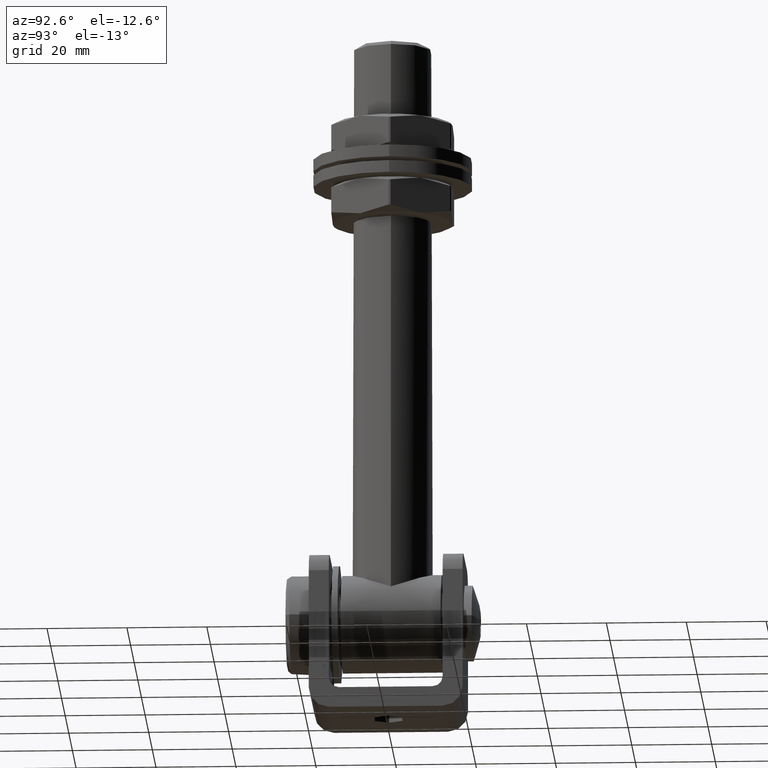
[diagram: clean part render]
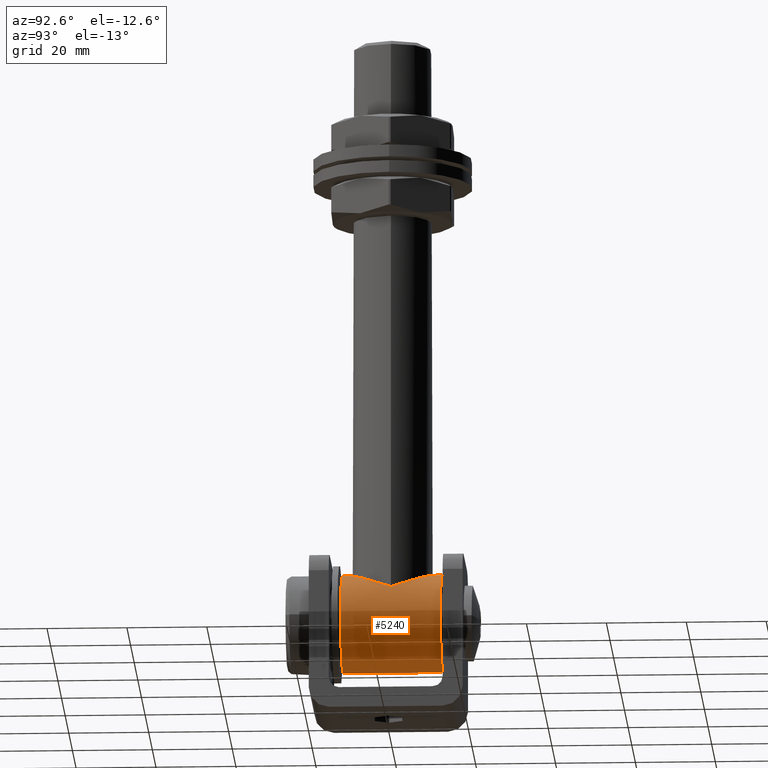
[diagram: same view with one face highlighted and labeled with its STEP entity id]
A machine part, auxiliary view. The second image highlights one B-rep face of the part: STEP entity #5240.
In plain terms, the highlighted cylindrical surface (partial cylindrical patch) has radius 12.5 mm, axis along (-0, -1, -0).
Its self-contained STEP definition (entity closure, byte-faithful):
#30 = CARTESIAN_POINT ( 'NONE',  ( 1.374250701650398421, -9.911119071784762369, 24.92899123197080868 ) ) ;
#87 = CARTESIAN_POINT ( 'NONE',  ( 10.00000000000000000, -0.3502560565025665817, 20.00000000000000355 ) ) ;
#205 = CARTESIAN_POINT ( 'NONE',  ( 0.000000000000000000, 12.50000000000000000, 12.50000000000000000 ) ) ;
#284 = CARTESIAN_POINT ( 'NONE',  ( 7.566306126111996377, -6.567939238527029211, 22.46407964469007368 ) ) ;
#318 = VERTEX_POINT ( 'NONE', #2850 ) ;
#779 = CARTESIAN_POINT ( 'NONE',  ( 4.598010520176416982, 8.905125854004371178, 24.14143615479020966 ) ) ;
#1000 = EDGE_CURVE ( 'NONE', #17165, #3987, #16954, .T. ) ;
#1509 = CARTESIAN_POINT ( 'NONE',  ( 9.324431114186022995, -3.627096256533199448, 20.82699121110412577 ) ) ;
#1841 = VERTEX_POINT ( 'NONE', #8165 ) ;
#1927 = EDGE_LOOP ( 'NONE', ( #5847, #18643, #3542, #3886, #15153, #3539, #8368 ) ) ;
#2191 = CARTESIAN_POINT ( 'NONE',  ( 3.682483057596400489, 9.303228489903005993, 24.44960261485472230 ) ) ;
#2850 = CARTESIAN_POINT ( 'NONE',  ( 0.000000000000000000, -12.50000000000000000, 0.000000000000000000 ) ) ;
#3048 = CARTESIAN_POINT ( 'NONE',  ( 9.075513655662634349, -4.211400567891692148, 21.09760723218307277 ) ) ;
#3121 = CARTESIAN_POINT ( 'NONE',  ( 0.000000000000000000, -12.50000000000000000, 12.50000000000000000 ) ) ;
#3176 = DIRECTION ( 'NONE',  ( -0.000000000000000000, -1.000000000000000000, -0.000000000000000000 ) ) ;
#3246 = CYLINDRICAL_SURFACE ( 'NONE', #15290, 12.50000000000000000 ) ;
#3481 = CARTESIAN_POINT ( 'NONE',  ( 6.211755165912530074, 7.862653695549001398, 23.36331154612080852 ) ) ;
#3539 = ORIENTED_EDGE ( 'NONE', *, *, #12413, .T. ) ;
#3542 = ORIENTED_EDGE ( 'NONE', *, *, #7227, .F. ) ;
#3691 = CARTESIAN_POINT ( 'NONE',  ( 1.530808498934191521E-15, 12.50000000000000000, 25.00000000000000000 ) ) ;
#3886 = ORIENTED_EDGE ( 'NONE', *, *, #16065, .F. ) ;
#3987 = VERTEX_POINT ( 'NONE', #14941 ) ;
#4535 = CIRCLE ( 'NONE', #13422, 12.50000000000000000 ) ;
#4569 = DIRECTION ( 'NONE',  ( 0.000000000000000000, 0.000000000000000000, -1.000000000000000000 ) ) ;
#4624 = CARTESIAN_POINT ( 'NONE',  ( 8.476865410468857220, -5.314110963753895689, 21.68948734812277834 ) ) ;
#4818 = CARTESIAN_POINT ( 'NONE',  ( 9.926920043240116343, 1.383554781295781133, 20.09972507766442362 ) ) ;
#4873 = CARTESIAN_POINT ( 'NONE',  ( 3.365547648660980329, 9.422675997939011339, 24.54295599325580923 ) ) ;
#4990 = CARTESIAN_POINT ( 'NONE',  ( 1.727627791032168458, 9.855546874027407256, 24.88466679993667086 ) ) ;
#5106 = CARTESIAN_POINT ( 'NONE',  ( 9.437504737664271559, 3.322645157292070994, 20.69796325221192035 ) ) ;
#5240 = ADVANCED_FACE ( 'NONE', ( #18684 ), #3246, .T. ) ;
#5541 = DIRECTION ( 'NONE',  ( -0.000000000000000000, -1.000000000000000000, -0.000000000000000000 ) ) ;
#5776 = DIRECTION ( 'NONE',  ( 0.000000000000000000, 1.000000000000000000, 0.000000000000000000 ) ) ;
#5847 = ORIENTED_EDGE ( 'NONE', *, *, #13682, .F. ) ;
#5893 = LINE ( 'NONE', #8975, #17038 ) ;
#6446 = CARTESIAN_POINT ( 'NONE',  ( 1.387111486062198029, 9.909492649581652657, 24.92769351742932216 ) ) ;
#7227 = EDGE_CURVE ( 'NONE', #12982, #3987, #9721, .T. ) ;
#7336 = CARTESIAN_POINT ( 'NONE',  ( 9.633720589932213585, -2.701595972902841591, 20.46647429444943356 ) ) ;
#7439 = DIRECTION ( 'NONE',  ( -0.000000000000000000, -1.000000000000000000, -0.000000000000000000 ) ) ;
#7458 = CARTESIAN_POINT ( 'NONE',  ( 6.694166617153108234, -7.454860665151016086, 23.06976843935381893 ) ) ;
#7567 = DIRECTION ( 'NONE',  ( 0.000000000000000000, 0.000000000000000000, 1.000000000000000000 ) ) ;
#7647 = CARTESIAN_POINT ( 'NONE',  ( 10.00000000000000000, 0.000000000000000000, 20.00000000000000000 ) ) ;
#7825 = CARTESIAN_POINT ( 'NONE',  ( 10.00000000000000000, 0.000000000000000000, 20.00000000000000000 ) ) ;
#7831 = CARTESIAN_POINT ( 'NONE',  ( 1.530805629502818164E-15, 10.00000000000000000, 25.00000000000000000 ) ) ;
#8165 = CARTESIAN_POINT ( 'NONE',  ( 1.530808498934191521E-15, -12.50000000000000000, 25.00000000000000000 ) ) ;
#8368 = ORIENTED_EDGE ( 'NONE', *, *, #9040, .F. ) ;
#8519 = VECTOR ( 'NONE', #5541, 1000.000000000000000 ) ;
#8735 = VERTEX_POINT ( 'NONE', #11111 ) ;
#8811 = CARTESIAN_POINT ( 'NONE',  ( 9.981264286554674570, -0.7016824805871356707, 20.02514871776903860 ) ) ;
#8975 = CARTESIAN_POINT ( 'NONE',  ( 1.530808498934191521E-15, 12.50000000000000000, 25.00000000000000000 ) ) ;
#8993 = CARTESIAN_POINT ( 'NONE',  ( 4.578909188192514357, -8.896021799896713489, 24.13523138879866892 ) ) ;
#9040 = EDGE_CURVE ( 'NONE', #13354, #318, #15989, .T. ) ;
#9048 = DIRECTION ( 'NONE',  ( 0.000000000000000000, 1.000000000000000000, 0.000000000000000000 ) ) ;
#9721 = B_SPLINE_CURVE_WITH_KNOTS ( 'NONE', 3,
 ( #7647, #17831, #4818, #10393, #12356, #5106, #13624, #13805, #13565, #18009, #10898, #12175, #3481, #10829, #779, #2191, #4873, #16496, #12237, #4990, #6446, #16622, #15261, #7831 ),
 .UNSPECIFIED., .F., .F.,
 ( 4, 2, 2, 2, 2, 2, 2, 2, 2, 2, 2, 4 ),
 ( 4.844028597227373642E-19, 0.002074880413616076585, 0.003112320620424114444, 0.004149760827232153171, 0.006224641240848228889, 0.008299521654464304607, 0.01037440206808038119, 0.01244928248169645604, 0.01348672268850449434, 0.01452416289531253263, 0.01556160310212057092, 0.01659904330892860921 ),
 .UNSPECIFIED. ) ;
#10084 = VECTOR ( 'NONE', #13683, 1000.000000000000000 ) ;
#10210 = CARTESIAN_POINT ( 'NONE',  ( 7.956118470281105637, -6.090013873220873286, 22.15224733007295654 ) ) ;
#10213 = CARTESIAN_POINT ( 'NONE',  ( 0.000000000000000000, 12.50000000000000000, 12.50000000000000000 ) ) ;
#10276 = CARTESIAN_POINT ( 'NONE',  ( 10.00000000000000000, 0.000000000000000000, 20.00000000000000000 ) ) ;
#10393 = CARTESIAN_POINT ( 'NONE',  ( 9.719234144359651495, 2.377178788300486456, 20.36122626231777133 ) ) ;
#10463 = CARTESIAN_POINT ( 'NONE',  ( 9.909587902504750190, -1.384941393758667649, 20.11928917846830345 ) ) ;
#10785 = CARTESIAN_POINT ( 'NONE',  ( 0.000000000000000000, 12.50000000000000000, 0.000000000000000000 ) ) ;
#10829 = CARTESIAN_POINT ( 'NONE',  ( 5.161940476440247672, 8.588457131234871866, 23.89964080605220786 ) ) ;
#10898 = CARTESIAN_POINT ( 'NONE',  ( 7.569191219374786783, 6.564512729620840759, 22.46183100323861837 ) ) ;
#11111 = CARTESIAN_POINT ( 'NONE',  ( 1.530816689004543226E-15, -10.00000000000000000, 25.00000000000000000 ) ) ;
#11602 = CIRCLE ( 'NONE', #18149, 12.50000000000000000 ) ;
#11672 = CARTESIAN_POINT ( 'NONE',  ( 9.719185129756255037, -2.377017039762587380, 20.36127667337418501 ) ) ;
#11734 = CARTESIAN_POINT ( 'NONE',  ( 5.146846670289301429, -8.579952364115046137, 23.89539328751454406 ) ) ;
#11863 = CARTESIAN_POINT ( 'NONE',  ( 0.3446634830757700496, -10.00000000000000178, 25.00000000000001421 ) ) ;
#11925 = CARTESIAN_POINT ( 'NONE',  ( 2.726271409501728638, -9.645648563817896814, 24.71806771161173444 ) ) ;
#12175 = CARTESIAN_POINT ( 'NONE',  ( 6.699044042564477941, 7.450388715268204898, 23.06662394373566372 ) ) ;
#12237 = CARTESIAN_POINT ( 'NONE',  ( 2.395610777198513563, 9.714810907818456798, 24.77296698170294320 ) ) ;
#12356 = CARTESIAN_POINT ( 'NONE',  ( 9.634030491815904540, 2.700356087162105734, 20.46608772490073136 ) ) ;
#12413 = EDGE_CURVE ( 'NONE', #1841, #318, #11602, .T. ) ;
#12982 = VERTEX_POINT ( 'NONE', #7825 ) ;
#13141 = CARTESIAN_POINT ( 'NONE',  ( 8.639570934625524501, -5.045395544241439545, 21.53614988648472206 ) ) ;
#13204 = CARTESIAN_POINT ( 'NONE',  ( 9.436376219439106094, -3.325958065113392426, 20.69927368333388173 ) ) ;
#13260 = CARTESIAN_POINT ( 'NONE',  ( 1.530816689004543226E-15, -10.00000000000000000, 25.00000000000000000 ) ) ;
#13319 = CARTESIAN_POINT ( 'NONE',  ( 0.6884457634639108425, -9.982228642785679895, 24.98576911792630995 ) ) ;
#13354 = VERTEX_POINT ( 'NONE', #10785 ) ;
#13422 = AXIS2_PLACEMENT_3D ( 'NONE', #205, #9048, #7567 ) ;
#13565 = CARTESIAN_POINT ( 'NONE',  ( 8.648300243115254915, 5.058759274972748798, 21.53716985847848520 ) ) ;
#13624 = CARTESIAN_POINT ( 'NONE',  ( 9.325757397163652485, 3.623743840137605421, 20.82551222567129301 ) ) ;
#13682 = EDGE_CURVE ( 'NONE', #17165, #13354, #4535, .T. ) ;
#13683 = DIRECTION ( 'NONE',  ( -0.000000000000000000, -1.000000000000000000, -0.000000000000000000 ) ) ;
#13805 = CARTESIAN_POINT ( 'NONE',  ( 8.951847947429476093, 4.502166159178701221, 21.23212675860363063 ) ) ;
#14270 = B_SPLINE_CURVE_WITH_KNOTS ( 'NONE', 3,
 ( #13260, #11863, #13319, #30, #14834, #11925, #17583, #17703, #8993, #11734, #14583, #16056, #7458, #284, #10210, #4624, #13141, #17523, #3048, #1509, #13204, #7336, #11672, #17643, #10463, #8811, #87, #10276 ),
 .UNSPECIFIED., .F., .F.,
 ( 4, 2, 2, 2, 2, 2, 2, 2, 2, 2, 2, 2, 2, 4 ),
 ( 0.04976887011246745873, 0.05080255113879208334, 0.05183623216511670795, 0.05390359421776595023, 0.05493727524409057483, 0.05597095627041519944, 0.05803831832306444866, 0.06010568037571369093, 0.06113936140203831554, 0.06217304242836294015, 0.06320672345468755782, 0.06424040448101217549, 0.06527408550733680703, 0.06630776653366142470 ),
 .UNSPECIFIED. ) ;
#14583 = CARTESIAN_POINT ( 'NONE',  ( 5.419721960306691955, -8.410022888909518102, 23.76781074076335898 ) ) ;
#14834 = CARTESIAN_POINT ( 'NONE',  ( 1.718692986905554498, -9.857173399129127489, 24.88596092427674833 ) ) ;
#14941 = CARTESIAN_POINT ( 'NONE',  ( 1.530805629502818164E-15, 10.00000000000000000, 25.00000000000000000 ) ) ;
#15075 = CARTESIAN_POINT ( 'NONE',  ( 0.000000000000000000, 12.50000000000000000, 0.000000000000000000 ) ) ;
#15124 = EDGE_CURVE ( 'NONE', #8735, #1841, #5893, .T. ) ;
#15153 = ORIENTED_EDGE ( 'NONE', *, *, #15124, .T. ) ;
#15261 = CARTESIAN_POINT ( 'NONE',  ( 0.3454553765157895029, 10.00000000000000000, 25.00000000000000355 ) ) ;
#15290 = AXIS2_PLACEMENT_3D ( 'NONE', #10213, #3176, #4569 ) ;
#15644 = CARTESIAN_POINT ( 'NONE',  ( 1.530808498934191521E-15, 12.50000000000000000, 25.00000000000000000 ) ) ;
#15989 = LINE ( 'NONE', #15075, #10084 ) ;
#16056 = CARTESIAN_POINT ( 'NONE',  ( 6.207630459425420355, -7.865927062671260295, 23.36568470672623477 ) ) ;
#16063 = DIRECTION ( 'NONE',  ( 0.000000000000000000, 0.000000000000000000, 1.000000000000000000 ) ) ;
#16065 = EDGE_CURVE ( 'NONE', #8735, #12982, #14270, .T. ) ;
#16496 = CARTESIAN_POINT ( 'NONE',  ( 2.723073452193844446, 9.628011472339469634, 24.70428494443080325 ) ) ;
#16622 = CARTESIAN_POINT ( 'NONE',  ( 0.6919766096477873996, 9.982148627353673476, 24.98570433774646204 ) ) ;
#16954 = LINE ( 'NONE', #15644, #8519 ) ;
#17038 = VECTOR ( 'NONE', #7439, 1000.000000000000000 ) ;
#17165 = VERTEX_POINT ( 'NONE', #3691 ) ;
#17523 = CARTESIAN_POINT ( 'NONE',  ( 8.938526203173072560, -4.494546856743839136, 21.24053430979093449 ) ) ;
#17583 = CARTESIAN_POINT ( 'NONE',  ( 3.365873516884075212, -9.440045038704072411, 24.55555270460997974 ) ) ;
#17643 = CARTESIAN_POINT ( 'NONE',  ( 9.856755515529263434, -1.719633769405615187, 20.18808176523216957 ) ) ;
#17703 = CARTESIAN_POINT ( 'NONE',  ( 4.282472944135480297, -9.042749261084999546, 24.24794830466453632 ) ) ;
#17831 = CARTESIAN_POINT ( 'NONE',  ( 9.999999999999998224, 0.7030596604559828933, 19.99999999999999645 ) ) ;
#18009 = CARTESIAN_POINT ( 'NONE',  ( 7.957434547902001221, 6.087969933651598886, 22.15105028284046895 ) ) ;
#18149 = AXIS2_PLACEMENT_3D ( 'NONE', #3121, #5776, #16063 ) ;
#18643 = ORIENTED_EDGE ( 'NONE', *, *, #1000, .T. ) ;
#18684 = FACE_OUTER_BOUND ( 'NONE', #1927, .T. ) ;